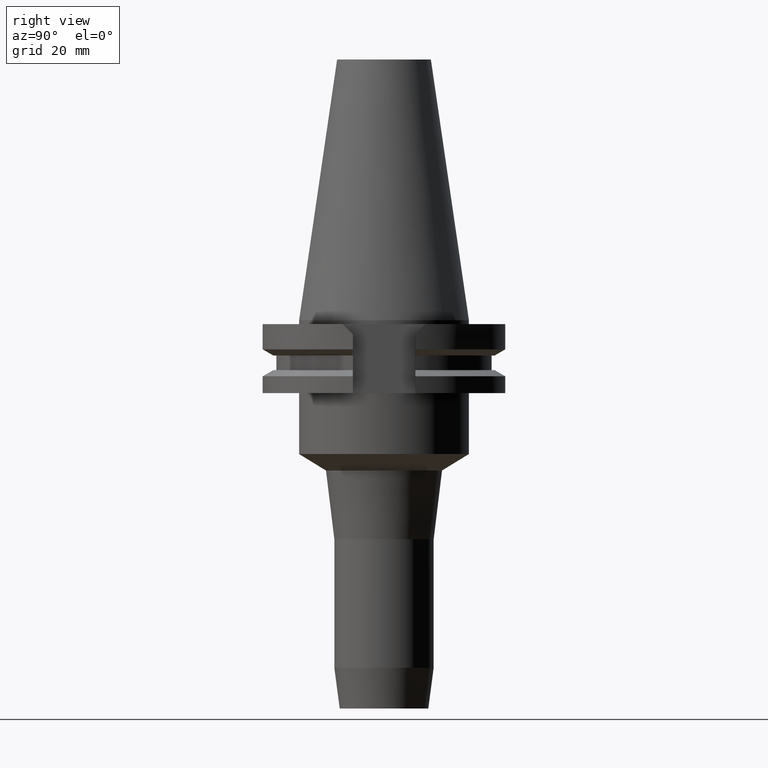
[diagram: clean part render]
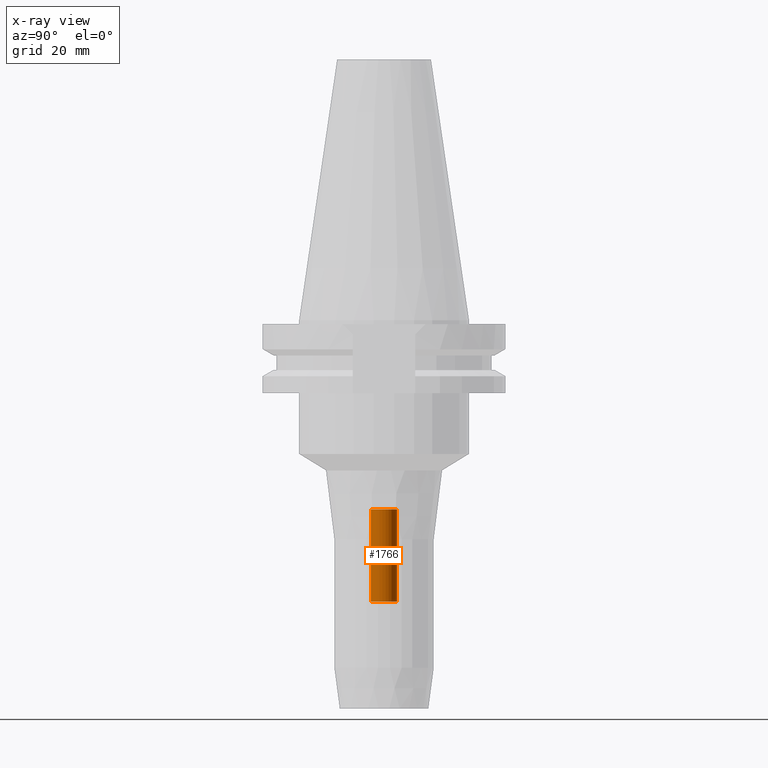
[diagram: x-ray — body ghosted, one internal face saturated and labeled with its STEP entity id]
A machine part, right view, then the same camera in x-ray: the body is ghosted and one INTERNAL B-rep face — a face not visible from any outside direction — is saturated and labeled: STEP entity #1766.
In plain terms, the highlighted cylindrical surface (edge-blend (fillet) strip) has radius 3.45 mm, axis along (0, 0, -1).
Its self-contained STEP definition (entity closure, byte-faithful):
#262=CARTESIAN_POINT('',(0.E0,2.164471368983E-14,-4.95E1));
#263=DIRECTION('',(0.E0,0.E0,1.E0));
#264=DIRECTION('',(0.E0,-1.E0,0.E0));
#265=AXIS2_PLACEMENT_3D('',#262,#263,#264);
#294=DIRECTION('',(0.E0,0.E0,1.E0));
#295=VECTOR('',#294,2.41E1);
#296=CARTESIAN_POINT('',(0.E0,3.45E0,-7.36E1));
#297=LINE('',#296,#295);
#301=DIRECTION('',(0.E0,0.E0,1.E0));
#302=VECTOR('',#301,2.41E1);
#303=CARTESIAN_POINT('',(0.E0,-3.45E0,-7.36E1));
#304=LINE('',#303,#302);
#316=CARTESIAN_POINT('',(0.E0,2.164471368983E-14,-7.36E1));
#317=DIRECTION('',(0.E0,0.E0,-1.E0));
#318=DIRECTION('',(0.E0,1.E0,0.E0));
#319=AXIS2_PLACEMENT_3D('',#316,#317,#318);
#1332=CARTESIAN_POINT('',(0.E0,-3.45E0,-4.95E1));
#1333=CARTESIAN_POINT('',(0.E0,3.45E0,-4.95E1));
#1334=VERTEX_POINT('',#1332);
#1335=VERTEX_POINT('',#1333);
#1336=CARTESIAN_POINT('',(0.E0,3.45E0,-7.36E1));
#1337=VERTEX_POINT('',#1336);
#1338=CARTESIAN_POINT('',(0.E0,-3.45E0,-7.36E1));
#1339=VERTEX_POINT('',#1338);
#1752=CARTESIAN_POINT('',(0.E0,2.164471368983E-14,7.67425E1));
#1753=DIRECTION('',(0.E0,0.E0,-1.E0));
#1754=DIRECTION('',(0.E0,-1.E0,0.E0));
#1755=AXIS2_PLACEMENT_3D('',#1752,#1753,#1754);
#1756=CYLINDRICAL_SURFACE('',#1755,3.45E0);
#1758=ORIENTED_EDGE('',*,*,#1757,.T.);
#1759=ORIENTED_EDGE('',*,*,#1741,.F.);
#1761=ORIENTED_EDGE('',*,*,#1760,.F.);
#1763=ORIENTED_EDGE('',*,*,#1762,.F.);
#1764=EDGE_LOOP('',(#1758,#1759,#1761,#1763));
#1765=FACE_OUTER_BOUND('',#1764,.F.);
#266=CIRCLE('',#265,3.45E0);
#320=CIRCLE('',#319,3.45E0);
#1741=EDGE_CURVE('',#1334,#1335,#266,.T.);
#1757=EDGE_CURVE('',#1337,#1335,#297,.T.);
#1760=EDGE_CURVE('',#1339,#1334,#304,.T.);
#1762=EDGE_CURVE('',#1337,#1339,#320,.T.);
#1766=ADVANCED_FACE('',(#1765),#1756,.F.);